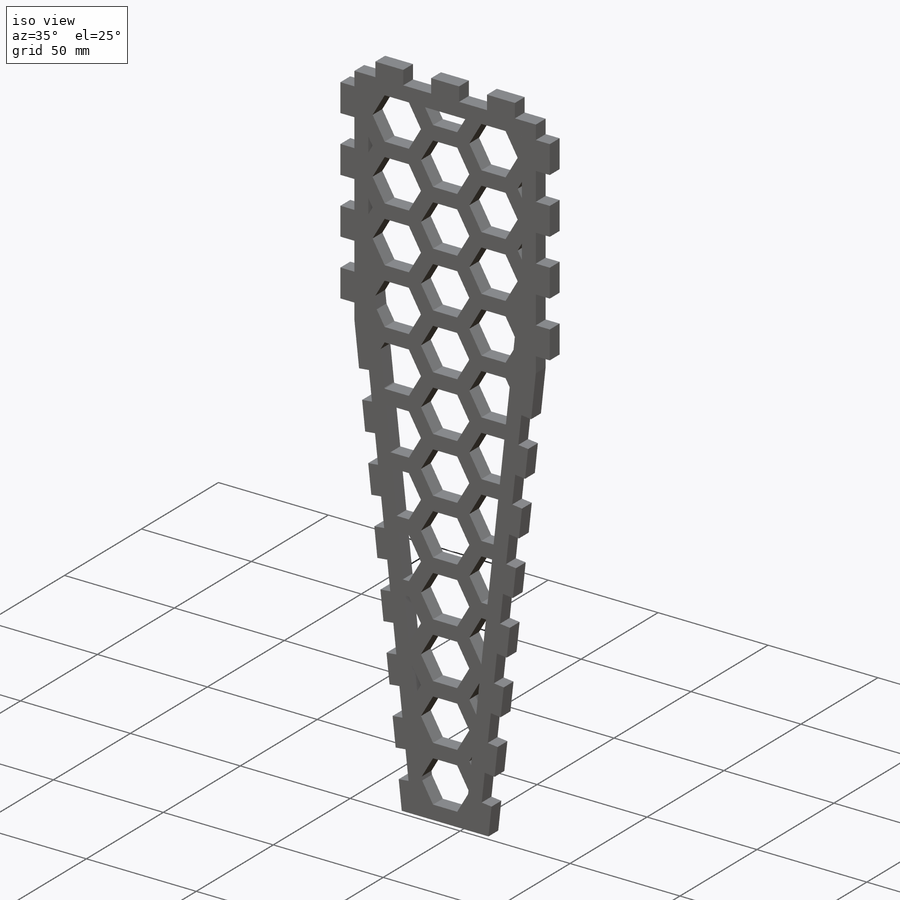
[diagram: iso view]
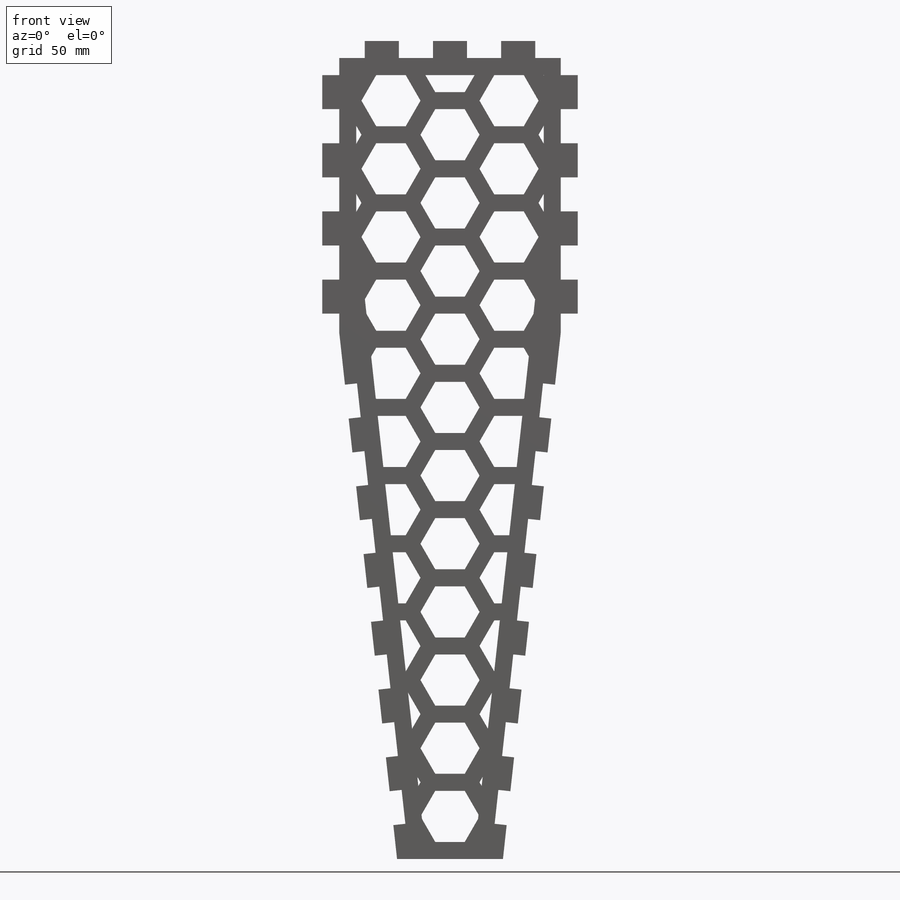
[diagram: front view]
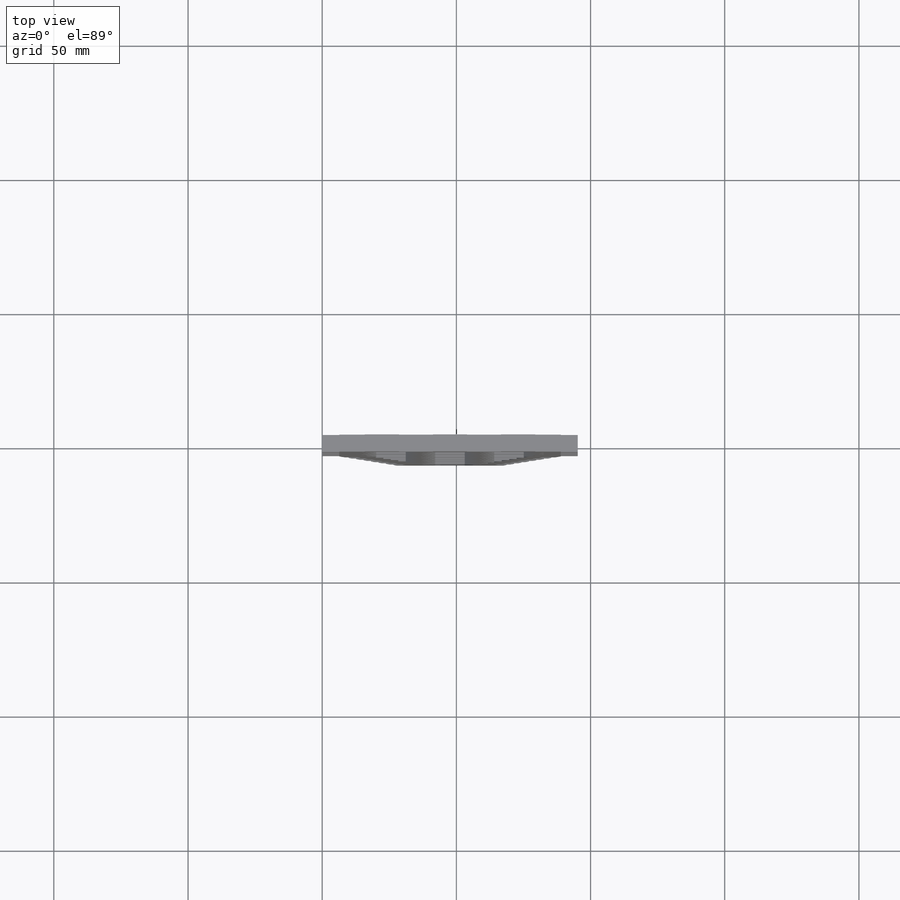
[diagram: top view]
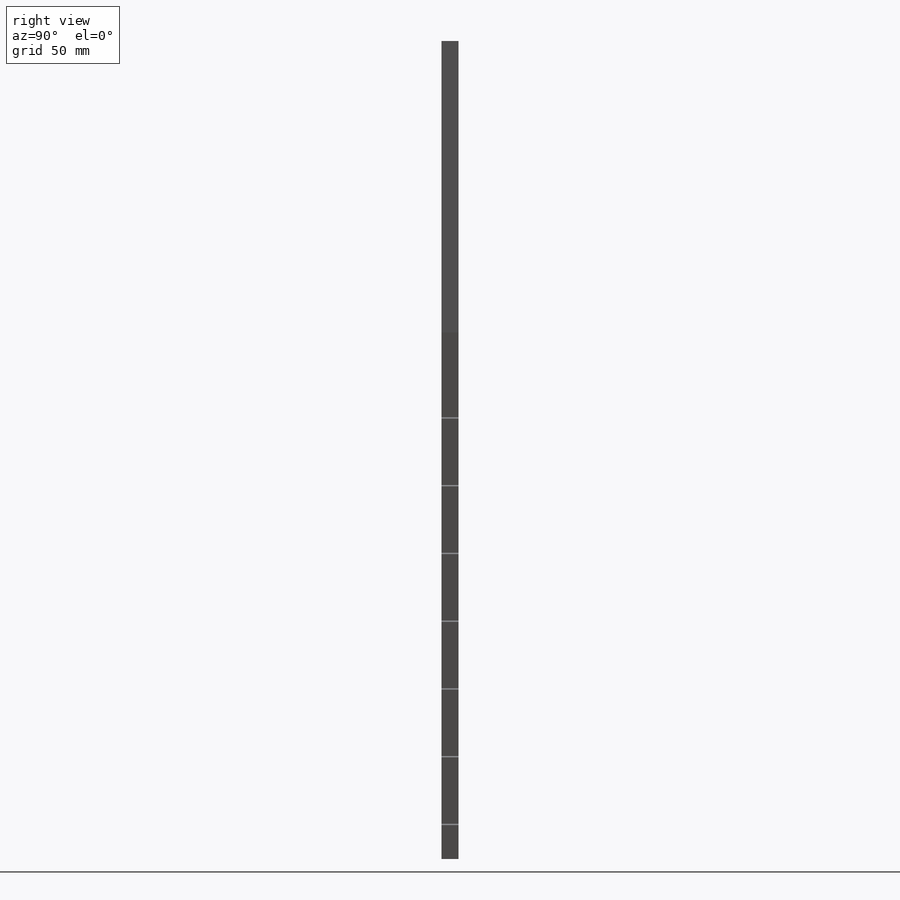
[diagram: right view]
SOLIDWORKS PART (.sldprt)
format: sldprt  version: not decoded by parser v0  size: 1,392,128 bytes
history: native  units: mm
features: sketch x11, cut_extrude x7, extrude x3, pattern_linear x3, material x1, boolean_combine x1 (+13 scaffold rows collapsed)
feature tree (39):
  scaffold x13  (default folders/planes/origin — collapsed)
  material  "Pine"
  sketch  "Sketch1"  dims[D1=95.25mm D2=304.8mm]
  extrude  "Boss-Extrude1"  Depth=6.35mm
  sketch  "Sketch2"  dims[D1=254.0mm D2=95.25mm]
  cut_extrude  "Cut-Extrude1"  [1 undecoded]
  sketch  "Sketch3"  dims[D1=12.7mm D2=6.35mm]
  cut_extrude  "Cut-Extrude2"  [1 undecoded]
  sketch  "Sketch4"  dims[D1=12.7mm D2=6.35mm D3=12.7mm D4=12.7mm D5=12.7mm]
  cut_extrude  "Cut-Extrude3"  [1 undecoded]
  sketch  "3DSketch1"  dims[D1=12.7mm D2=12.7mm D3=6.35mm]
  sketch  "Sketch5"  dims[D1=12.7mm D2=6.35mm D3=12.7mm]
  cut_extrude  "Cut-Extrude4"  [1 undecoded]
  pattern_linear  "LPattern2"  Count1=7 Count2=1 Spacing1=25.4mm Spacing2=2.54mm
  sketch  "Sketch6"  dims[D1=12.7mm]
  cut_extrude  "Cut-Extrude5"  [1 undecoded]
  pattern_linear  "LPattern3"  Count1=7 Count2=1 Spacing1=25.4mm Spacing2=2.54mm
  sketch  "Sketch9"
  extrude  "Boss-Extrude2"  [1 undecoded]
  pattern_linear  "LPattern4"  Count1=5 Count2=1 Spacing1=25.4mm Spacing2=2.54mm
  sketch  "Sketch10"  dims[D1=6.35mm D2=6.35mm D3=6.35mm D4=6.35mm D5=6.35mm D6=6.35mm]
  extrude  "Boss-Extrude5"  Depth=6.35mm
  sketch  "Sketch13"  dims[D1=19.05mm D2=6.35mm]
  cut_extrude  "Cut-Extrude8"  Depth=6.35mm
  cut_extrude  "Cut-Extrude9"  [1 undecoded]
  sketch  "Sketch10<3>"
  boolean_combine  "Combine1"
decode coverage: 15 of 25 modeling features carry decoded parameters
note: 7 parameter values undecoded
summary: no parameter record found for 7 features
note: suppression state not decoded; provenance and decode notes live in map.json
